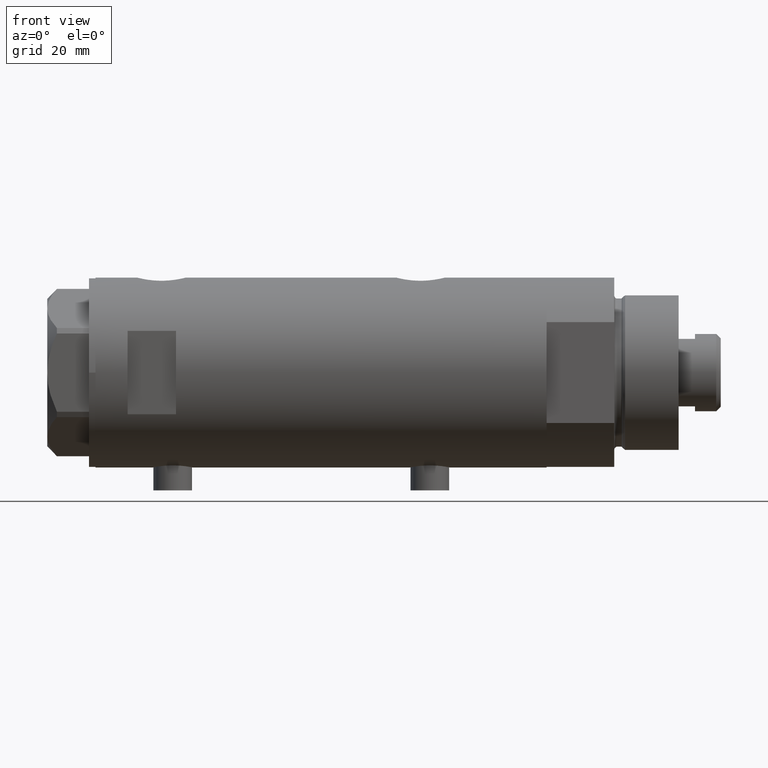
[diagram: clean part render]
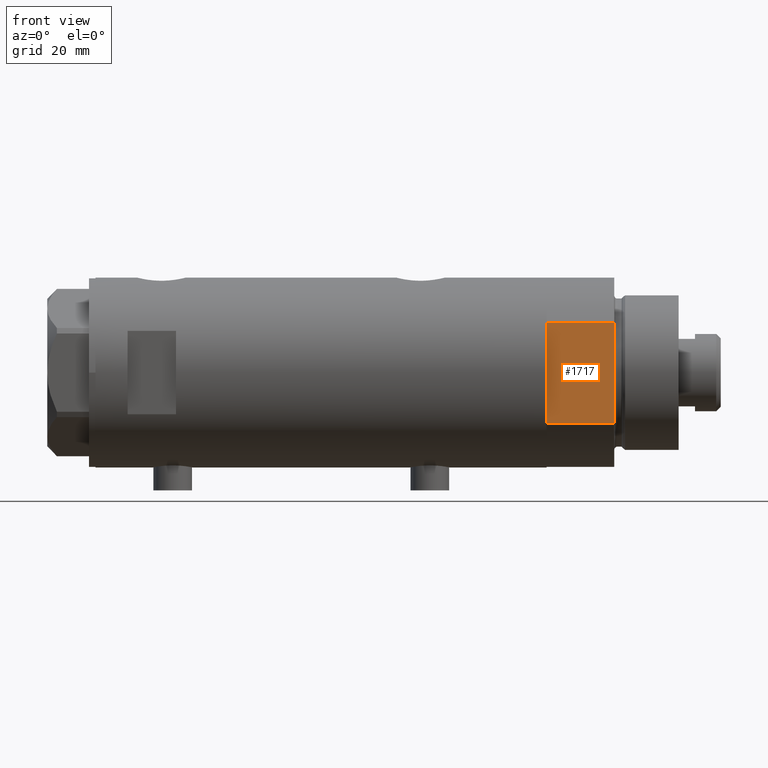
[diagram: same view with one face highlighted and labeled with its STEP entity id]
A machine part, front view. The second image highlights one B-rep face of the part: STEP entity #1717.
In plain terms, the highlighted planar face has unit normal (-0, 1, 0).
Its self-contained STEP definition (entity closure, byte-faithful):
#49 = DIRECTION ( 'NONE',  ( -0.000000000000000000, 1.000000000000000000, 0.000000000000000000 ) ) ;
#145 = DIRECTION ( 'NONE',  ( -0.000000000000000000, -0.000000000000000000, 1.000000000000000000 ) ) ;
#201 = CARTESIAN_POINT ( 'NONE',  ( 15.66045976336583401, -25.00000000000000000, 0.000000000000000000 ) ) ;
#418 = LINE ( 'NONE', #4173, #3596 ) ;
#437 = CARTESIAN_POINT ( 'NONE',  ( -7.141428428542853091, -25.00000000000000000, 0.000000000000000000 ) ) ;
#680 = CARTESIAN_POINT ( 'NONE',  ( -15.66045976336583401, -25.00000000000000000, 0.000000000000000000 ) ) ;
#770 = VECTOR ( 'NONE', #1923, 1000.000000000000000 ) ;
#832 = DIRECTION ( 'NONE',  ( 0.000000000000000000, -0.000000000000000000, 1.000000000000000000 ) ) ;
#881 = EDGE_CURVE ( 'NONE', #3299, #1169, #3081, .T. ) ;
#1092 = CARTESIAN_POINT ( 'NONE',  ( -15.66045976336583401, -25.00000000000000000, 21.00000000000000000 ) ) ;
#1169 = VERTEX_POINT ( 'NONE', #2983 ) ;
#1182 = DIRECTION ( 'NONE',  ( -1.000000000000000000, -0.000000000000000000, -0.000000000000000000 ) ) ;
#1237 = VECTOR ( 'NONE', #4595, 1000.000000000000000 ) ;
#1470 = EDGE_CURVE ( 'NONE', #3511, #3299, #3682, .T. ) ;
#1671 = CARTESIAN_POINT ( 'NONE',  ( -15.66045976336583401, -25.00000000000000000, 0.000000000000000000 ) ) ;
#1717 = ADVANCED_FACE ( 'NONE', ( #4027 ), #4772, .F. ) ;
#1773 = EDGE_CURVE ( 'NONE', #3751, #2972, #2394, .T. ) ;
#1859 = ORIENTED_EDGE ( 'NONE', *, *, #2129, .F. ) ;
#1910 = ORIENTED_EDGE ( 'NONE', *, *, #4488, .F. ) ;
#1923 = DIRECTION ( 'NONE',  ( -1.000000000000000000, -0.000000000000000000, -0.000000000000000000 ) ) ;
#2113 = ORIENTED_EDGE ( 'NONE', *, *, #2669, .T. ) ;
#2129 = EDGE_CURVE ( 'NONE', #1169, #3012, #3150, .T. ) ;
#2202 = ORIENTED_EDGE ( 'NONE', *, *, #881, .F. ) ;
#2394 = LINE ( 'NONE', #3892, #1237 ) ;
#2669 = EDGE_CURVE ( 'NONE', #2972, #3012, #2943, .T. ) ;
#2866 = CARTESIAN_POINT ( 'NONE',  ( 15.66045976336583045, -25.00000000000000000, 21.00000000000000355 ) ) ;
#2943 = LINE ( 'NONE', #1092, #3672 ) ;
#2972 = VERTEX_POINT ( 'NONE', #2866 ) ;
#2983 = CARTESIAN_POINT ( 'NONE',  ( -15.66045976336582690, -25.00000000000000000, 0.000000000000000000 ) ) ;
#3012 = VERTEX_POINT ( 'NONE', #4476 ) ;
#3081 = LINE ( 'NONE', #4541, #770 ) ;
#3150 = LINE ( 'NONE', #1671, #4046 ) ;
#3250 = CARTESIAN_POINT ( 'NONE',  ( -15.66045976336583401, -25.00000000000000000, 0.000000000000000000 ) ) ;
#3264 = ORIENTED_EDGE ( 'NONE', *, *, #1470, .F. ) ;
#3299 = VERTEX_POINT ( 'NONE', #437 ) ;
#3503 = VECTOR ( 'NONE', #3652, 1000.000000000000000 ) ;
#3511 = VERTEX_POINT ( 'NONE', #3953 ) ;
#3596 = VECTOR ( 'NONE', #1182, 1000.000000000000000 ) ;
#3652 = DIRECTION ( 'NONE',  ( -1.000000000000000000, -0.000000000000000000, -0.000000000000000000 ) ) ;
#3672 = VECTOR ( 'NONE', #4453, 1000.000000000000000 ) ;
#3682 = LINE ( 'NONE', #3250, #3503 ) ;
#3751 = VERTEX_POINT ( 'NONE', #201 ) ;
#3892 = CARTESIAN_POINT ( 'NONE',  ( 15.66045976336583401, -25.00000000000000000, 0.000000000000000000 ) ) ;
#3953 = CARTESIAN_POINT ( 'NONE',  ( 7.141428428542853091, -25.00000000000000000, 0.000000000000000000 ) ) ;
#4027 = FACE_OUTER_BOUND ( 'NONE', #4524, .T. ) ;
#4046 = VECTOR ( 'NONE', #145, 1000.000000000000000 ) ;
#4090 = ORIENTED_EDGE ( 'NONE', *, *, #1773, .T. ) ;
#4122 = AXIS2_PLACEMENT_3D ( 'NONE', #680, #49, #832 ) ;
#4173 = CARTESIAN_POINT ( 'NONE',  ( -15.66045976336583401, -25.00000000000000000, 0.000000000000000000 ) ) ;
#4453 = DIRECTION ( 'NONE',  ( -1.000000000000000000, -0.000000000000000000, -0.000000000000000000 ) ) ;
#4476 = CARTESIAN_POINT ( 'NONE',  ( -15.66045976336583045, -24.99999999999999645, 20.99999999999999645 ) ) ;
#4488 = EDGE_CURVE ( 'NONE', #3751, #3511, #418, .T. ) ;
#4524 = EDGE_LOOP ( 'NONE', ( #2113, #1859, #2202, #3264, #1910, #4090 ) ) ;
#4541 = CARTESIAN_POINT ( 'NONE',  ( -15.66045976336583401, -25.00000000000000000, 0.000000000000000000 ) ) ;
#4595 = DIRECTION ( 'NONE',  ( -0.000000000000000000, -0.000000000000000000, 1.000000000000000000 ) ) ;
#4772 = PLANE ( 'NONE',  #4122 ) ;